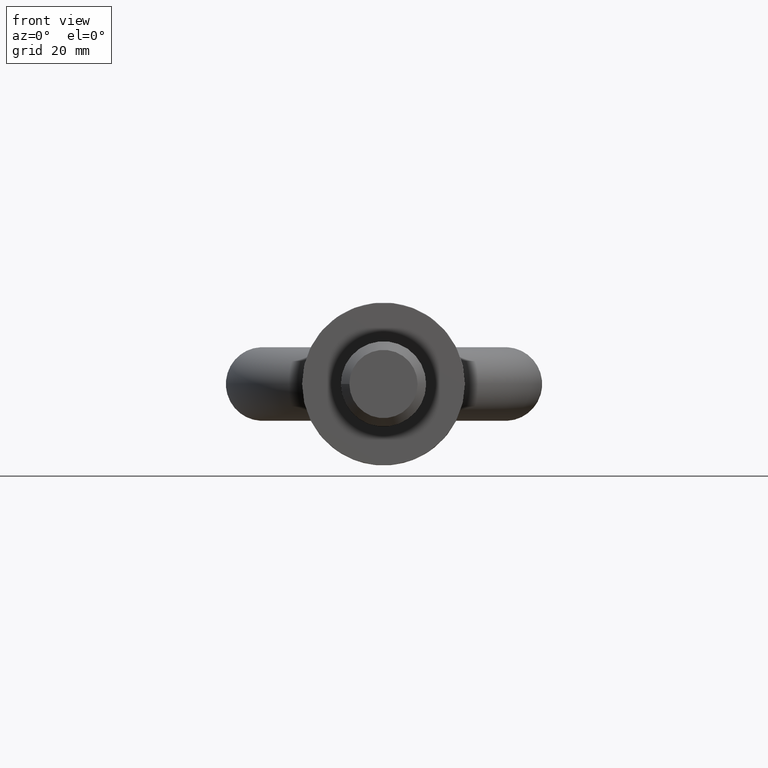
[diagram: clean part render]
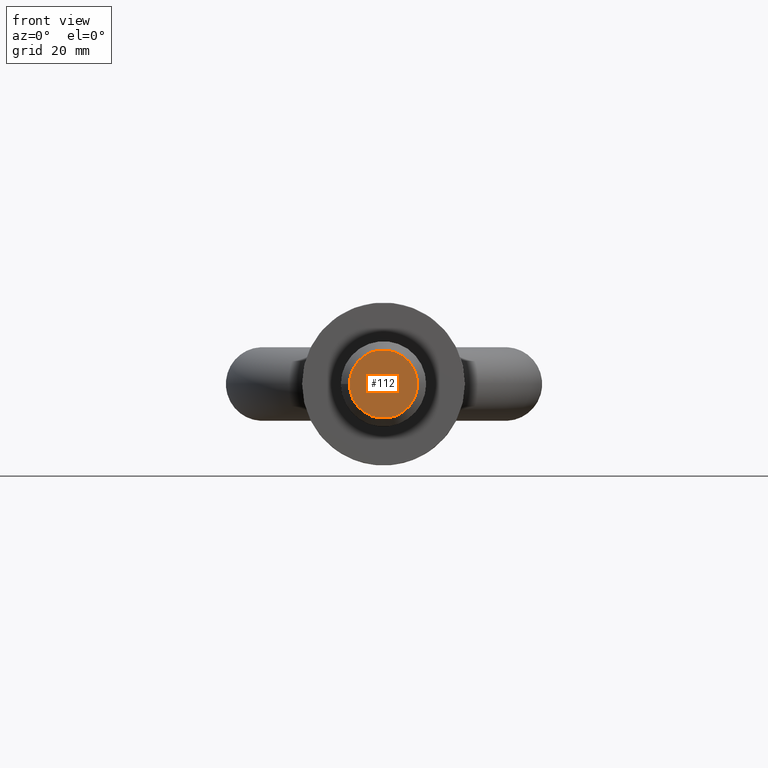
[diagram: same view with one face highlighted and labeled with its STEP entity id]
A machine part, front view. The second image highlights one B-rep face of the part: STEP entity #112.
In plain terms, the highlighted planar face has unit normal (-0, 1, 0).
Its self-contained STEP definition (entity closure, byte-faithful):
#102=PLANE('',#490);
#112=ADVANCED_FACE('',(#146),#102,.F.);
#146=FACE_OUTER_BOUND('',#172,.T.);
#172=EDGE_LOOP('',(#282));
#222=CIRCLE('',#489,8.8);
#282=ORIENTED_EDGE('',*,*,#430,.T.);
#386=VERTEX_POINT('',#857);
#430=EDGE_CURVE('',#386,#386,#222,.T.);
#489=AXIS2_PLACEMENT_3D('',#856,#555,#556);
#490=AXIS2_PLACEMENT_3D('',#858,#557,#558);
#555=DIRECTION('',(2.96883306868402E-18,-1.,0.));
#556=DIRECTION('',(-1.,0.,0.));
#557=DIRECTION('',(-2.96883306868402E-18,1.,0.));
#558=DIRECTION('',(-1.,0.,0.));
#856=CARTESIAN_POINT('',(2.74617058853272E-16,-64.,0.));
#857=CARTESIAN_POINT('',(-8.8,-64.,0.));
#858=CARTESIAN_POINT('',(4.84768338434147E-35,-64.,0.));